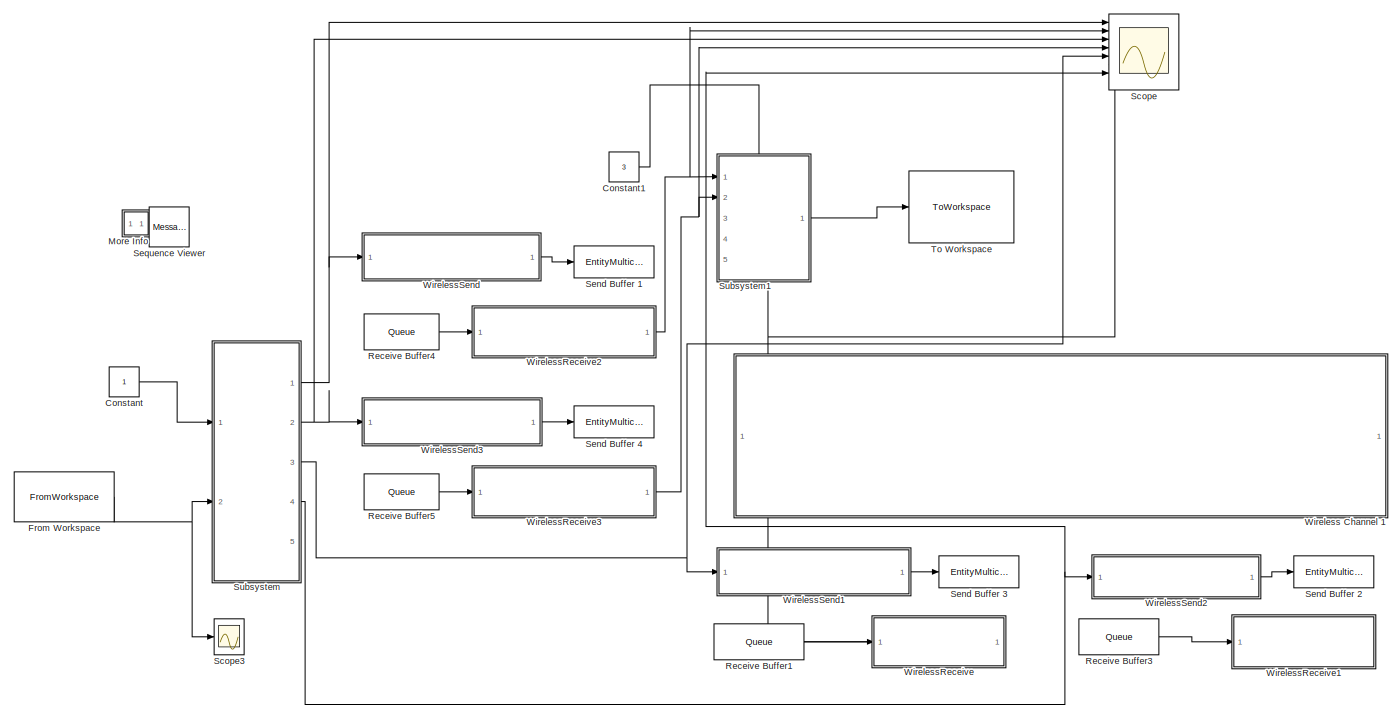
[diagram: root canvas - part 1/2, most of the canvas]
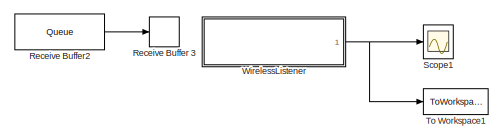
[diagram: root canvas - part 2/2, bottom left region]
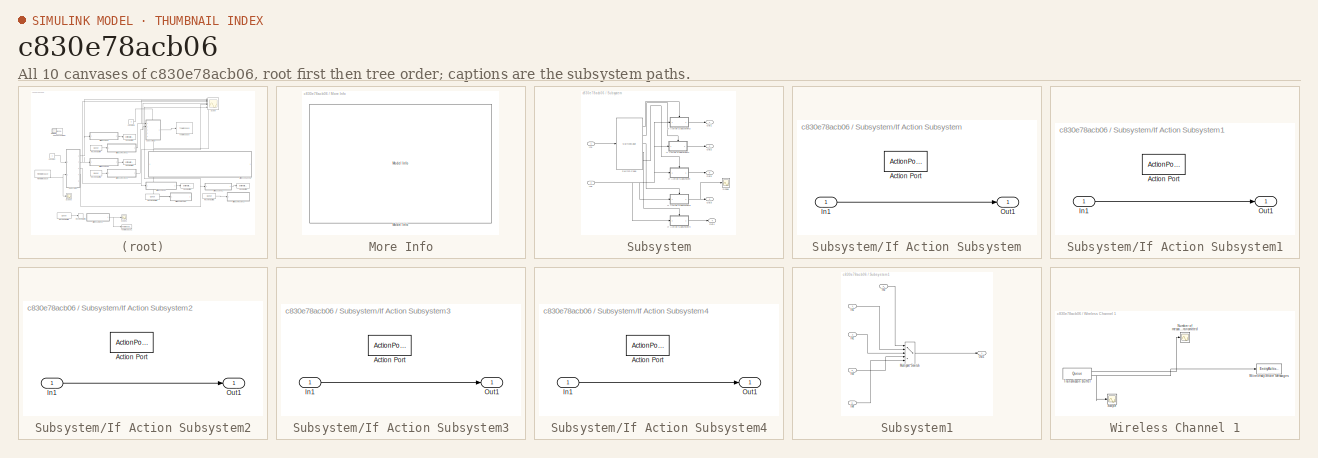
[diagram: thumbnail index - all 10 canvases of the model, root first then tree order]
MODEL slx_c830e78acb06
KIND model
CONFIG AbsTol = auto
CONFIG EnableMultiTasking = off
CONFIG FixedStep = auto
CONFIG MaxStep = auto
CONFIG MinStep = auto
CONFIG RelTol = 1e-3
CONFIG SampleTimeConstraint = Unconstrained
CONFIG SolverName = VariableStepAuto
CONFIG StartTime = 0.0
CONFIG StopTime = 200
BLOCK [Constant] Constant
BLOCK [Constant] Constant1
  Value = 3
BLOCK [FromWorkspace] From Workspace
  LoadFcn = OWPAN_SSID = '1111111111112200';\n    \n%     a = timer('ExecutionMode','fixedRate','Period',10,'TimerFcn',@myfun,'TasksToExecute',10);\n%     start(a);\n    \n    beacon = Create_beacon(OWPAN_SSID);\n    \n          \n    beacon = double(beacon);\n    time = 1:1:length(beacon);\n    \n    % Binary information as stream of bits (binary signal 0 or 1)\n    disp('Beacon Frame generated and Sending -Binary infor...<+802ch>
  VariableName = simin2
BLOCK [SubSystem] More Info
  OpenFcn = showExample('simulink/MessageCommunicationPacketLossChannelFailureExample')
  Ports = []
  RequestExecContextInheritance = off
BLOCK [Reference] More Info/Model Info  REF=simulink/Model-Wide
Utilities/Model Info
  Ports = []
  SourceBlock = simulink/Model-Wide\nUtilities/Model Info
  SourceProductBaseCode = SL
  SourceType = CMBlock
BLOCK [EntityTerminator] Receive Buffer 3
  EntryAction = WirelessListener.onOneMessage(entity);
  InputPortMap = u0
  InputPortMessageModes = m
  Ports = [1]
BLOCK [Queue] Receive Buffer1
  Capacity = 16
  EntityArrivalSource = Multicast
  MulticastTag = B
  OutputPortMap = o5
  OutputPortMessageModes = m
  Ports = [0, 1]
BLOCK [Queue] Receive Buffer2
  Capacity = 16
  EntityArrivalSource = Multicast
  MulticastTag = B
  OutputPortMap = o5
  OutputPortMessageModes = m
  Ports = [0, 1]
BLOCK [Queue] Receive Buffer3
  Capacity = 16
  EntityArrivalSource = Multicast
  MulticastTag = B
  OutputPortMap = o5
  OutputPortMessageModes = m
  Ports = [0, 1]
BLOCK [Queue] Receive Buffer4
  Capacity = 16
  Commented = on
  EntityArrivalSource = Multicast
  MulticastTag = B
  OutputPortMap = o5
  OutputPortMessageModes = m
  Ports = [0, 1]
BLOCK [Queue] Receive Buffer5
  Capacity = 16
  EntityArrivalSource = Multicast
  MulticastTag = B
  OutputPortMap = o5
  OutputPortMessageModes = m
  Ports = [0, 1]
BLOCK [Scope] Scope
  Floating = off
  NumInputPorts = 8
  Ports = [8]
  ScopeSpecificationString = Simulink.scopes.TimeScopeBlockCfg('CurrentConfiguration', extmgr.ConfigurationSet(extmgr.Configuration('Core','General UI',true),extmgr.Configuration('Core','Source UI',true),extmgr.Configuration('Sources','WiredSimulink',true,'DataLoggingVariableName','ScopeData1'),extmgr.Configuration('Visuals','Time Domain',true,'SerializedDisplays',{struct('MinYLimReal','-0.125','MaxYLimReal','1.125','YLabelRe...<+6358ch>
BLOCK [Scope] Scope1
  Floating = off
  NumInputPorts = 1
  Ports = [1]
  ScopeSpecificationString = Simulink.scopes.TimeScopeBlockCfg('CurrentConfiguration', extmgr.ConfigurationSet(extmgr.Configuration('Core','General UI',true),extmgr.Configuration('Core','Source UI',true),extmgr.Configuration('Sources','WiredSimulink',true,'DataLoggingVariableName','ScopeData2'),extmgr.Configuration('Visuals','Time Domain',true,'SerializedDisplays',{struct('MinYLimReal','-0.25','MaxYLimReal','2.25','YLabelReal...<+1422ch>
BLOCK [Scope] Scope3
  Floating = off
  NumInputPorts = 1
  Ports = [1]
  ScopeSpecificationString = Simulink.scopes.TimeScopeBlockCfg('CurrentConfiguration', extmgr.ConfigurationSet(extmgr.Configuration('Core','General UI',true),extmgr.Configuration('Core','Source UI',true),extmgr.Configuration('Sources','WiredSimulink',true,'DataLoggingVariableName','ScopeData2'),extmgr.Configuration('Visuals','Time Domain',true,'SerializedDisplays',{struct('MinYLimReal','-0.125','MaxYLimReal','1.125','YLabelRe...<+1401ch>
BLOCK [EntityMulticast] Send Buffer 1
  InputPortMessageModes = m
BLOCK [EntityMulticast] Send Buffer 2
  Commented = on
  InputPortMessageModes = m
BLOCK [EntityMulticast] Send Buffer 3
  Commented = on
  InputPortMessageModes = m
BLOCK [EntityMulticast] Send Buffer 4
  Commented = on
  InputPortMessageModes = m
BLOCK [MessageViewer] Sequence Viewer
  History = 1000
  SavedRootId = #
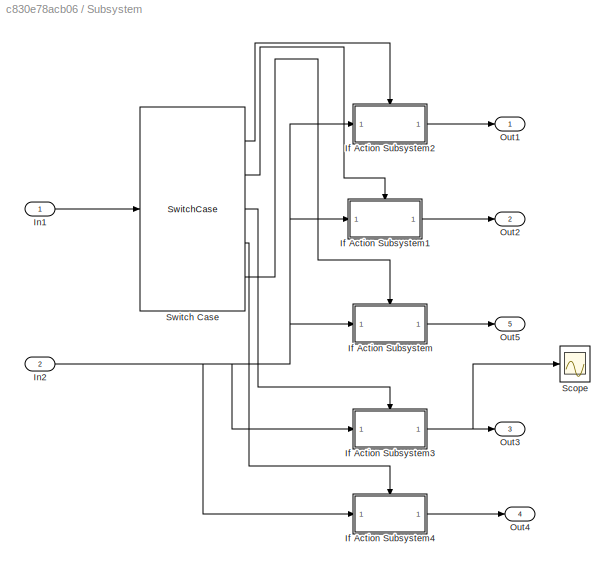
BLOCK [SubSystem] Subsystem
  Ports = [2, 5]
  RequestExecContextInheritance = off
BLOCK [SubSystem] Subsystem/If Action Subsystem
  Ports = [1, 1, 0, 0, 0, 0, 0, 1]
  RequestExecContextInheritance = off
  TreatAsAtomicUnit = on
BLOCK [ActionPort] Subsystem/If Action Subsystem/Action Port
  ActionPortLabel = default:
BLOCK [Inport] Subsystem/If Action Subsystem/In1
BLOCK [Outport] Subsystem/If Action Subsystem/Out1
BLOCK [SubSystem] Subsystem/If Action Subsystem1
  Ports = [1, 1, 0, 0, 0, 0, 0, 1]
  RequestExecContextInheritance = off
  TreatAsAtomicUnit = on
BLOCK [ActionPort] Subsystem/If Action Subsystem1/Action Port
  ActionPortLabel = case [ 2 ]:
BLOCK [Inport] Subsystem/If Action Subsystem1/In1
BLOCK [Outport] Subsystem/If Action Subsystem1/Out1
BLOCK [SubSystem] Subsystem/If Action Subsystem2
  Ports = [1, 1, 0, 0, 0, 0, 0, 1]
  RequestExecContextInheritance = off
  TreatAsAtomicUnit = on
BLOCK [ActionPort] Subsystem/If Action Subsystem2/Action Port
  ActionPortLabel = case [ 1 ]:
BLOCK [Inport] Subsystem/If Action Subsystem2/In1
BLOCK [Outport] Subsystem/If Action Subsystem2/Out1
BLOCK [SubSystem] Subsystem/If Action Subsystem3
  Ports = [1, 1, 0, 0, 0, 0, 0, 1]
  RequestExecContextInheritance = off
  TreatAsAtomicUnit = on
BLOCK [ActionPort] Subsystem/If Action Subsystem3/Action Port
  ActionPortLabel = case [ 3 ]:
BLOCK [Inport] Subsystem/If Action Subsystem3/In1
BLOCK [Outport] Subsystem/If Action Subsystem3/Out1
BLOCK [SubSystem] Subsystem/If Action Subsystem4
  Ports = [1, 1, 0, 0, 0, 0, 0, 1]
  RequestExecContextInheritance = off
  TreatAsAtomicUnit = on
BLOCK [ActionPort] Subsystem/If Action Subsystem4/Action Port
  ActionPortLabel = case [ 4 ]:
BLOCK [Inport] Subsystem/If Action Subsystem4/In1
BLOCK [Outport] Subsystem/If Action Subsystem4/Out1
BLOCK [Inport] Subsystem/In1
BLOCK [Inport] Subsystem/In2
  Port = 2
BLOCK [Outport] Subsystem/Out1
BLOCK [Outport] Subsystem/Out2
  Port = 2
BLOCK [Outport] Subsystem/Out3
  Port = 3
BLOCK [Outport] Subsystem/Out4
  Port = 4
BLOCK [Outport] Subsystem/Out5
  Port = 5
BLOCK [Scope] Subsystem/Scope
  Floating = off
  NumInputPorts = 1
  Ports = [1]
  ScopeSpecificationString = Simulink.scopes.TimeScopeBlockCfg('CurrentConfiguration', extmgr.ConfigurationSet(extmgr.Configuration('Core','General UI',true),extmgr.Configuration('Core','Source UI',true),extmgr.Configuration('Sources','WiredSimulink',true,'DataLoggingVariableName','ScopeData3'),extmgr.Configuration('Visuals','Time Domain',true,'SerializedDisplays',{struct('MinYLimReal','-0.125','MaxYLimReal','1.125','YLabelRe...<+1407ch>
BLOCK [SwitchCase] Subsystem/Switch Case
  CaseConditions = {1, 2,3,4}
  Ports = [1, 5]
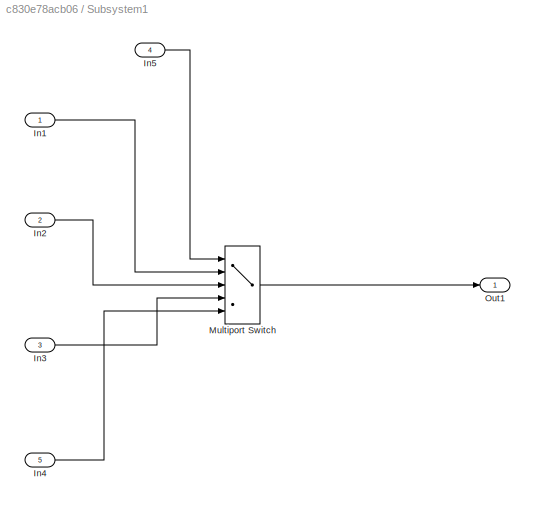
BLOCK [SubSystem] Subsystem1
  PortSchema = {"entries":[{"content":{"sides":[{"content":{"connectorIds":["In1","In2","In3"]},"type":"ConnectorPlacement.EquallySpacedRectSide","uuid":"355ae0f0-6a2b-4df0-a695-f8a4027a74b4"},{"content":{"connectorIds":["Out1"],"side":"RIGHT"},"type":"ConnectorPlacement.EquallySpacedRectSide","uuid":"192bb8ad-cad8-44a0-b230-a407f18e16db"},{"content":{"connectorIds":["In4"],"side":"TOP"},"type":"ConnectorPlaceme...<+406ch>
  Ports = [5, 1]
  RequestExecContextInheritance = off
BLOCK [Inport] Subsystem1/In1
BLOCK [Inport] Subsystem1/In2
  Port = 2
BLOCK [Inport] Subsystem1/In3
  Port = 3
BLOCK [Inport] Subsystem1/In4
  Port = 5
BLOCK [Inport] Subsystem1/In5
  Port = 4
BLOCK [MultiPortSwitch] Subsystem1/Multiport Switch
  InputSameDT = off
  Inputs = 4
  Ports = [5, 1]
  SaturateOnIntegerOverflow = off
BLOCK [Outport] Subsystem1/Out1
BLOCK [ToWorkspace] To Workspace
  FixptAsFi = on
  MaxDataPoints = inf
  Ports = [1]
  SampleTime = -1
  SaveFormat = Timeseries
  VariableName = simout
BLOCK [ToWorkspace] To Workspace1
  FixptAsFi = on
  MaxDataPoints = 1
  Ports = [1]
  SampleTime = -1
  SaveFormat = Timeseries
  VariableName = listenerinp
BLOCK [SubSystem] Wireless Channel 1
  Ports = []
  RequestExecContextInheritance = off
BLOCK [Scope] Wireless Channel 1/Number of messages transmitted
  Floating = off
  NumInputPorts = 1
  Ports = [1]
  ScopeSpecificationString = Simulink.scopes.TimeScopeBlockCfg('CurrentConfiguration', extmgr.ConfigurationSet(extmgr.Configuration('Core','General UI',true),extmgr.Configuration('Core','Source UI',true),extmgr.Configuration('Sources','WiredSimulink',true,'DataLoggingVariableName','ScopeData2'),extmgr.Configuration('Visuals','Time Domain',true,'SerializedDisplays',{struct('MinYLimReal','-530.75','MaxYLimReal','4786.75','YLabe...<+1556ch>
BLOCK [Scope] Wireless Channel 1/Scope
  Floating = off
  NumInputPorts = 1
  Ports = [1]
  ScopeSpecificationString = Simulink.scopes.TimeScopeBlockCfg('CurrentConfiguration', extmgr.ConfigurationSet(extmgr.Configuration('Core','General UI',true),extmgr.Configuration('Core','Source UI',true),extmgr.Configuration('Sources','WiredSimulink',true,'DataLoggingVariableName','ScopeData1'),extmgr.Configuration('Visuals','Time Domain',true,'SerializedDisplays',{struct('MinYLimReal','-0.52586','MaxYLimReal','4.73277','YLab...<+1441ch>
BLOCK [Queue] Wireless Channel 1/Transmisson Buffer
  Capacity = 100
  EntityArrivalSource = Multicast
  NumberEntitiesDeparted = on
  OutputPortMap = o0,o5
  OutputPortMessageModes = n,m
  Ports = [0, 2]
BLOCK [EntityMulticast] Wireless Channel 1/Wiirelessly Share Messages
  InputPortMessageModes = m
  MulticastTag = B
BLOCK [ModelReference] WirelessListener
  ModelNameDialog = Listener.slx
  ModelReferenceVersion = 3.0
  Ports = [0, 1]
  ScheduleRates = on
BLOCK [ModelReference] WirelessReceive
  InputPortMessageModes = m
  ModelNameDialog = Device1_receiver.slx
  ModelReferenceVersion = 3.29
  PortSchema = {"entries":[{"content":{"sides":[{"content":{"connectorIds":["In1"]},"type":"ConnectorPlacement.EquallySpacedRectSide","uuid":"a99da9cd-0138-497f-8456-d2ca8a1e68af"},{"content":{"connectorIds":[],"side":"RIGHT"},"type":"ConnectorPlacement.EquallySpacedRectSide","uuid":"a0aee5c5-57dc-49d3-94ec-52271de65030"},{"content":{"connectorIds":["Out1"],"side":"TOP"},"type":"ConnectorPlacement.EquallySpacedR...<+240ch>
  Ports = [1, 1]
BLOCK [ModelReference] WirelessReceive1
  InputPortMessageModes = m
  ModelNameDialog = Device2_receiver.slx
  ModelReferenceVersion = 3.12
  Ports = [1]
BLOCK [ModelReference] WirelessReceive2
  InputPortMessageModes = m
  ModelNameDialog = Coordinator_receiver.slx
  ModelReferenceVersion = 3.18
  Ports = [1, 1]
BLOCK [ModelReference] WirelessReceive3
  InputPortMessageModes = m
  ModelNameDialog = Coordinator_receiver2.slx
  ModelReferenceVersion = 3.19
  Ports = [1, 1]
BLOCK [ModelReference] WirelessSend
  ModelNameDialog = Coordinator_sender.slx
  ModelReferenceVersion = 3.96
  OutputPortMessageModes = m
  Ports = [1, 1]
BLOCK [ModelReference] WirelessSend1
  ModelNameDialog = Device1_sender.slx
  ModelReferenceVersion = 3.37
  OutputPortMessageModes = m
  Ports = [1, 1]
BLOCK [ModelReference] WirelessSend2
  ModelNameDialog = Device2_sender.slx
  ModelReferenceVersion = 3.33
  OutputPortMessageModes = m
  Ports = [1, 1]
BLOCK [ModelReference] WirelessSend3
  ModelNameDialog = Coordinator_sender2.slx
  ModelReferenceVersion = 3.42
  OutputPortMessageModes = m
  PortSchema = {"entries":[{"content":{"sides":[{"content":{"connectorIds":[]},"type":"ConnectorPlacement.EquallySpacedRectSide","uuid":"a99da9cd-0138-497f-8456-d2ca8a1e68af"},{"content":{"connectorIds":["Out1"],"side":"RIGHT"},"type":"ConnectorPlacement.EquallySpacedRectSide","uuid":"a0aee5c5-57dc-49d3-94ec-52271de65030"},{"content":{"connectorIds":["In1"],"side":"TOP"},"type":"ConnectorPlacement.EquallySpacedR...<+240ch>
  Ports = [1, 1]
LINE Constant1:1 -> Subsystem1:4
LINE Constant:1 -> Subsystem:1
NET From Workspace:1 -> Scope3:1, Subsystem:2
LINE Receive Buffer1:1 -> WirelessReceive:1
LINE Receive Buffer2:1 -> Receive Buffer 3:1
LINE Receive Buffer3:1 -> WirelessReceive1:1
LINE Receive Buffer4:1 -> WirelessReceive2:1
LINE Receive Buffer5:1 -> WirelessReceive3:1
LINE Subsystem/If Action Subsystem/In1:1 -> Subsystem/If Action Subsystem/Out1:1
LINE Subsystem/If Action Subsystem1/In1:1 -> Subsystem/If Action Subsystem1/Out1:1
LINE Subsystem/If Action Subsystem1:1 -> Subsystem/Out2:1
LINE Subsystem/If Action Subsystem2/In1:1 -> Subsystem/If Action Subsystem2/Out1:1
LINE Subsystem/If Action Subsystem2:1 -> Subsystem/Out1:1
LINE Subsystem/If Action Subsystem3/In1:1 -> Subsystem/If Action Subsystem3/Out1:1
NET Subsystem/If Action Subsystem3:1 -> Subsystem/Out3:1, Subsystem/Scope:1
LINE Subsystem/If Action Subsystem4/In1:1 -> Subsystem/If Action Subsystem4/Out1:1
LINE Subsystem/If Action Subsystem4:1 -> Subsystem/Out4:1
LINE Subsystem/If Action Subsystem:1 -> Subsystem/Out5:1
LINE Subsystem/In1:1 -> Subsystem/Switch Case:1
NET Subsystem/In2:1 -> Subsystem/If Action Subsystem1:1, Subsystem/If Action Subsystem2:1, Subsystem/If Action Subsystem3:1, Subsystem/If Action Subsystem4:1, Subsystem/If Action Subsystem:1
LINE Subsystem/Switch Case:1 -> Subsystem/If Action Subsystem2:ifaction
LINE Subsystem/Switch Case:2 -> Subsystem/If Action Subsystem1:ifaction
LINE Subsystem/Switch Case:3 -> Subsystem/If Action Subsystem3:ifaction
LINE Subsystem/Switch Case:4 -> Subsystem/If Action Subsystem4:ifaction
LINE Subsystem/Switch Case:5 -> Subsystem/If Action Subsystem:ifaction
LINE Subsystem1/In1:1 -> Subsystem1/Multiport Switch:2
LINE Subsystem1/In2:1 -> Subsystem1/Multiport Switch:3
LINE Subsystem1/In3:1 -> Subsystem1/Multiport Switch:4
LINE Subsystem1/In4:1 -> Subsystem1/Multiport Switch:5
LINE Subsystem1/In5:1 -> Subsystem1/Multiport Switch:1
LINE Subsystem1/Multiport Switch:1 -> Subsystem1/Out1:1
LINE Subsystem1:1 -> To Workspace:1
NET Subsystem:1 -> Scope:1, WirelessSend:1
NET Subsystem:2 -> Scope:3, WirelessSend3:1
NET Subsystem:3 -> Scope:5, WirelessSend1:1
NET Subsystem:4 -> Scope:7, WirelessSend2:1
LINE Wireless Channel 1/Transmisson Buffer:1 -> Wireless Channel 1/Number of messages transmitted:1
NET Wireless Channel 1/Transmisson Buffer:2 -> Wireless Channel 1/Scope:1, Wireless Channel 1/Wiirelessly Share Messages:1
NET WirelessListener:1 -> Scope1:1, To Workspace1:1
NET WirelessReceive2:1 -> Scope:2, Subsystem1:1
NET WirelessReceive3:1 -> Scope:4, Subsystem1:2
NET WirelessReceive:1 -> Scope:6, Subsystem1:3
LINE WirelessSend1:1 -> Send Buffer 3:1
LINE WirelessSend2:1 -> Send Buffer 2:1
LINE WirelessSend3:1 -> Send Buffer 4:1
LINE WirelessSend:1 -> Send Buffer 1:1
note: NET lines group one-source signal fan-out (src -> all destinations, sorted); 1:1 wires keep LINE
